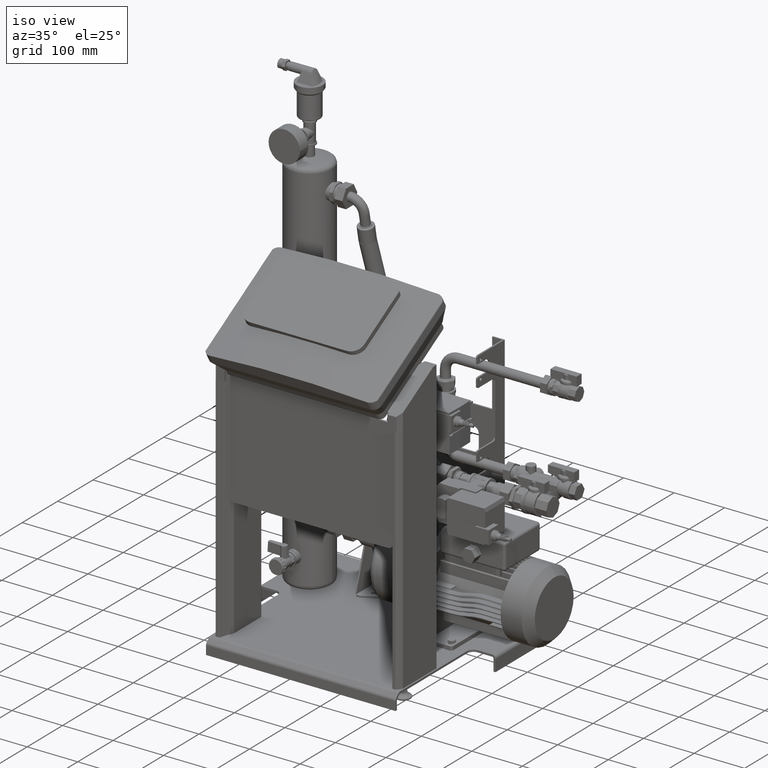
[diagram: clean part render]
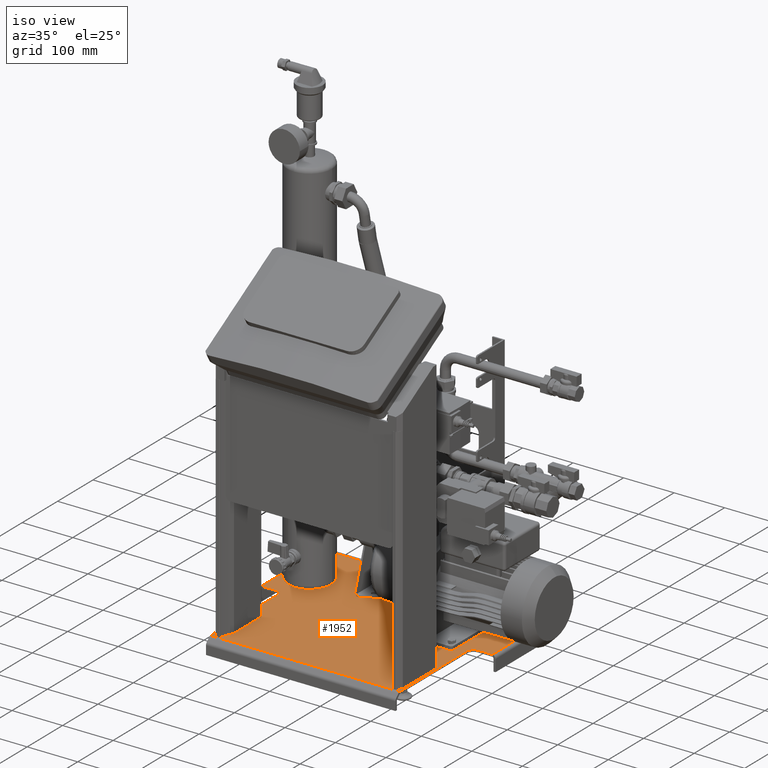
[diagram: same view with one face highlighted and labeled with its STEP entity id]
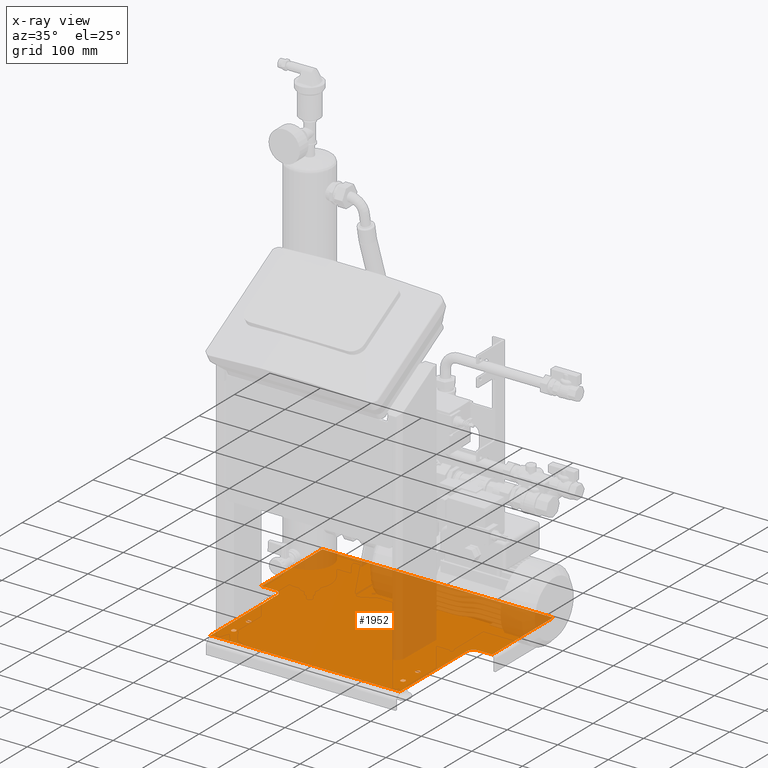
[diagram: x-ray of the same camera — body ghosted, the highlighted face saturated]
A machine part, iso view. The second image highlights one B-rep face of the part: STEP entity #1952.
The next image is the same camera in x-ray: the body ghosted, the highlighted face saturated — about 29% of this face is hidden behind the body in this view.
In plain terms, the highlighted planar face has unit normal (0, 0, 1).
Its self-contained STEP definition (entity closure, byte-faithful):
#130=CARTESIAN_POINT('',(-118.8515066156703,-228.4074149234998,28.750000000000167));
#131=VERTEX_POINT('',#130);
#140=CARTESIAN_POINT('',(-126.74974967317695,-224.09258507608078,28.750000000000167));
#141=VERTEX_POINT('',#140);
#142=CARTESIAN_POINT('',(-122.80062814467027,-226.24999999979968,28.750000000000167));
#143=DIRECTION('',(0.0,0.0,1.0));
#144=DIRECTION('',(0.877582561917337,-0.479425538554844,0.0));
#145=AXIS2_PLACEMENT_3D('',#142,#143,#144);
#146=CIRCLE('',#145,4.499999999999993);
#147=EDGE_CURVE('',#131,#141,#146,.T.);
#172=CARTESIAN_POINT('',(216.1484933843297,-228.4074149234998,28.750000000000167));
#173=VERTEX_POINT('',#172);
#182=CARTESIAN_POINT('',(208.25025032682305,-224.09258507608078,28.750000000000167));
#183=VERTEX_POINT('',#182);
#184=CARTESIAN_POINT('',(212.19937185532973,-226.24999999979968,28.750000000000167));
#185=DIRECTION('',(0.0,0.0,1.0));
#186=DIRECTION('',(-0.877582561907988,0.479425538571959,0.0));
#187=AXIS2_PLACEMENT_3D('',#184,#185,#186);
#188=CIRCLE('',#187,4.500000000000005);
#189=EDGE_CURVE('',#173,#183,#188,.T.);
#214=CARTESIAN_POINT('',(216.1484933843297,-186.4074149234998,28.750000000000167));
#215=VERTEX_POINT('',#214);
#224=CARTESIAN_POINT('',(208.25025032682305,-182.09258507608078,28.750000000000167));
#225=VERTEX_POINT('',#224);
#226=CARTESIAN_POINT('',(212.19937185532973,-184.24999999979968,28.750000000000167));
#227=DIRECTION('',(0.0,0.0,1.0));
#228=DIRECTION('',(0.877582561917337,-0.479425538554846,0.0));
#229=AXIS2_PLACEMENT_3D('',#226,#227,#228);
#230=CIRCLE('',#229,4.499999999999997);
#231=EDGE_CURVE('',#215,#225,#230,.T.);
#256=CARTESIAN_POINT('',(-118.85150661616359,-186.40741492351859,28.750000000000167));
#257=VERTEX_POINT('',#256);
#266=CARTESIAN_POINT('',(-126.74974967367024,-182.09258507599975,28.750000000000167));
#267=VERTEX_POINT('',#266);
#268=CARTESIAN_POINT('',(-122.80062814467027,-184.24999999979968,28.750000000000167));
#269=DIRECTION('',(0.0,0.0,1.0));
#270=DIRECTION('',(0.877582561917337,-0.479425538554844,0.0));
#271=AXIS2_PLACEMENT_3D('',#268,#269,#270);
#272=CIRCLE('',#271,4.499999999999993);
#273=EDGE_CURVE('',#257,#267,#272,.T.);
#300=CARTESIAN_POINT('',(273.1993718553299,111.25000000000023,28.750000000000167));
#301=VERTEX_POINT('',#300);
#405=CARTESIAN_POINT('',(-183.8006281446701,111.25000000000023,28.750000000000167));
#406=VERTEX_POINT('',#405);
#508=CARTESIAN_POINT('',(-183.8006281446701,111.25000000000023,28.750000000000167));
#509=DIRECTION('',(1.0,0.0,0.0));
#510=VECTOR('',#509,457.0);
#511=LINE('',#508,#510);
#512=EDGE_CURVE('',#301,#406,#511,.F.);
#943=CARTESIAN_POINT('',(273.19937185532973,-61.249657658999695,28.750000000000167));
#944=VERTEX_POINT('',#943);
#945=CARTESIAN_POINT('',(273.1993718553299,-61.249657658999695,28.750000000000167));
#946=DIRECTION('',(0.0,1.0,0.0));
#947=VECTOR('',#946,172.49965765899992);
#948=LINE('',#945,#947);
#949=EDGE_CURVE('',#944,#301,#948,.T.);
#976=CARTESIAN_POINT('',(-183.80062814467027,-61.249657658999695,28.750000000000167));
#977=VERTEX_POINT('',#976);
#985=CARTESIAN_POINT('',(-183.80062814467027,-61.249657658999666,28.750000000000167));
#986=DIRECTION('',(0.0,1.0,0.0));
#987=VECTOR('',#986,172.49965765899989);
#988=LINE('',#985,#987);
#989=EDGE_CURVE('',#406,#977,#988,.F.);
#1106=CARTESIAN_POINT('',(-122.80062814467027,-184.24999999979968,28.750000000000167));
#1107=DIRECTION('',(0.0,0.0,1.0));
#1108=DIRECTION('',(0.877582561917337,-0.479425538554844,0.0));
#1109=AXIS2_PLACEMENT_3D('',#1106,#1107,#1108);
#1110=CIRCLE('',#1109,4.499999999999993);
#1111=EDGE_CURVE('',#267,#257,#1110,.T.);
#1130=CARTESIAN_POINT('',(212.19937185532973,-184.24999999979968,28.750000000000167));
#1131=DIRECTION('',(0.0,0.0,1.0));
#1132=DIRECTION('',(0.877582561917337,-0.479425538554846,0.0));
#1133=AXIS2_PLACEMENT_3D('',#1130,#1131,#1132);
#1134=CIRCLE('',#1133,4.499999999999997);
#1135=EDGE_CURVE('',#225,#215,#1134,.T.);
#1201=CARTESIAN_POINT('',(-155.30062814467027,-61.249657658999695,28.750000000000167));
#1202=VERTEX_POINT('',#1201);
#1209=CARTESIAN_POINT('',(-183.80062814467027,-61.249657658999695,28.750000000000167));
#1210=DIRECTION('',(1.0,0.0,0.0));
#1211=VECTOR('',#1210,28.5);
#1212=LINE('',#1209,#1211);
#1213=EDGE_CURVE('',#977,#1202,#1212,.T.);
#1232=CARTESIAN_POINT('',(-142.80062814467027,-73.749657658999695,28.750000000000167));
#1233=VERTEX_POINT('',#1232);
#1240=CARTESIAN_POINT('',(-155.30062814467027,-73.749657658999695,28.750000000000167));
#1241=DIRECTION('',(0.0,0.0,1.0));
#1242=DIRECTION('',(0.0,1.0,0.0));
#1243=AXIS2_PLACEMENT_3D('',#1240,#1241,#1242);
#1244=CIRCLE('',#1243,12.5);
#1245=EDGE_CURVE('',#1233,#1202,#1244,.T.);
#1258=CARTESIAN_POINT('',(-142.80062814467027,-263.55965765899964,28.750000000000167));
#1259=VERTEX_POINT('',#1258);
#1266=CARTESIAN_POINT('',(-142.80062814467027,-263.55965765899964,28.750000000000167));
#1267=DIRECTION('',(0.0,1.0,0.0));
#1268=VECTOR('',#1267,189.80999999999995);
#1269=LINE('',#1266,#1268);
#1270=EDGE_CURVE('',#1233,#1259,#1269,.F.);
#1413=CARTESIAN_POINT('',(232.19937185532973,-263.55965765899964,28.750000000000167));
#1414=VERTEX_POINT('',#1413);
#1454=CARTESIAN_POINT('',(232.19937185532973,-73.749657658999695,28.750000000000167));
#1455=VERTEX_POINT('',#1454);
#1462=CARTESIAN_POINT('',(232.19937185532973,-263.55965765899964,28.750000000000167));
#1463=DIRECTION('',(0.0,1.0,0.0));
#1464=VECTOR('',#1463,189.80999999999995);
#1465=LINE('',#1462,#1464);
#1466=EDGE_CURVE('',#1414,#1455,#1465,.T.);
#1486=CARTESIAN_POINT('',(244.69937185532973,-61.249657658999695,28.750000000000167));
#1487=VERTEX_POINT('',#1486);
#1494=CARTESIAN_POINT('',(244.69937185532973,-73.749657658999695,28.750000000000167));
#1495=DIRECTION('',(0.0,0.0,1.0));
#1496=DIRECTION('',(-1.0,0.0,0.0));
#1497=AXIS2_PLACEMENT_3D('',#1494,#1495,#1496);
#1498=CIRCLE('',#1497,12.5);
#1499=EDGE_CURVE('',#1487,#1455,#1498,.T.);
#1510=CARTESIAN_POINT('',(244.69937185532973,-61.249657658999695,28.750000000000167));
#1511=DIRECTION('',(1.0,0.0,0.0));
#1512=VECTOR('',#1511,28.5);
#1513=LINE('',#1510,#1512);
#1514=EDGE_CURVE('',#944,#1487,#1513,.F.);
#1834=CARTESIAN_POINT('',(212.19937185532973,-226.24999999979968,28.750000000000167));
#1835=DIRECTION('',(0.0,0.0,1.0));
#1836=DIRECTION('',(-0.877582561907988,0.479425538571959,0.0));
#1837=AXIS2_PLACEMENT_3D('',#1834,#1835,#1836);
#1838=CIRCLE('',#1837,4.500000000000005);
#1839=EDGE_CURVE('',#183,#173,#1838,.T.);
#1851=CARTESIAN_POINT('',(-142.80062814467027,-263.55965765899964,28.750000000000167));
#1852=DIRECTION('',(1.0,0.0,0.0));
#1853=VECTOR('',#1852,375.0);
#1854=LINE('',#1851,#1853);
#1855=EDGE_CURVE('',#1414,#1259,#1854,.F.);
#1875=CARTESIAN_POINT('',(-122.80062814467027,-226.24999999979968,28.750000000000167));
#1876=DIRECTION('',(0.0,0.0,1.0));
#1877=DIRECTION('',(0.877582561917337,-0.479425538554844,0.0));
#1878=AXIS2_PLACEMENT_3D('',#1875,#1876,#1877);
#1879=CIRCLE('',#1878,4.499999999999993);
#1880=EDGE_CURVE('',#141,#131,#1879,.T.);
#1919=CARTESIAN_POINT('',(-30.300628144670085,87.750000000000227,28.750000000000167));
#1920=DIRECTION('',(0.0,0.0,1.0));
#1921=DIRECTION('',(1.0,0.0,0.0));
#1922=AXIS2_PLACEMENT_3D('',#1919,#1920,#1921);
#1923=PLANE('',#1922);
#1924=ORIENTED_EDGE('',*,*,#989,.T.);
#1925=ORIENTED_EDGE('',*,*,#1213,.T.);
#1926=ORIENTED_EDGE('',*,*,#1245,.F.);
#1927=ORIENTED_EDGE('',*,*,#1270,.T.);
#1928=ORIENTED_EDGE('',*,*,#1855,.F.);
#1929=ORIENTED_EDGE('',*,*,#1466,.T.);
#1930=ORIENTED_EDGE('',*,*,#1499,.F.);
#1931=ORIENTED_EDGE('',*,*,#1514,.F.);
#1932=ORIENTED_EDGE('',*,*,#949,.T.);
#1933=ORIENTED_EDGE('',*,*,#512,.T.);
#1934=EDGE_LOOP('',(#1924,#1925,#1926,#1927,#1928,#1929,#1930,#1931,#1932,#1933));
#1935=FACE_OUTER_BOUND('',#1934,.T.);
#1936=ORIENTED_EDGE('',*,*,#231,.F.);
#1937=ORIENTED_EDGE('',*,*,#1135,.F.);
#1938=EDGE_LOOP('',(#1936,#1937));
#1939=FACE_BOUND('',#1938,.T.);
#1940=ORIENTED_EDGE('',*,*,#1111,.F.);
#1941=ORIENTED_EDGE('',*,*,#273,.F.);
#1942=EDGE_LOOP('',(#1940,#1941));
#1943=FACE_BOUND('',#1942,.T.);
#1944=ORIENTED_EDGE('',*,*,#147,.F.);
#1945=ORIENTED_EDGE('',*,*,#1880,.F.);
#1946=EDGE_LOOP('',(#1944,#1945));
#1947=FACE_BOUND('',#1946,.T.);
#1948=ORIENTED_EDGE('',*,*,#189,.F.);
#1949=ORIENTED_EDGE('',*,*,#1839,.F.);
#1950=EDGE_LOOP('',(#1948,#1949));
#1951=FACE_BOUND('',#1950,.T.);
#1952=ADVANCED_FACE('',(#1935,#1939,#1943,#1947,#1951),#1923,.T.);